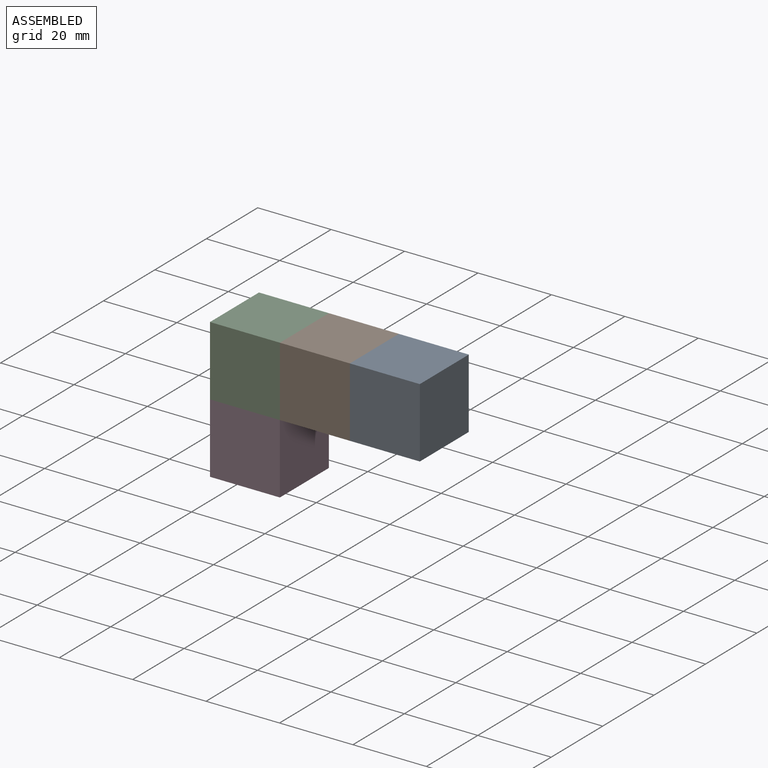
[diagram: assembled view]
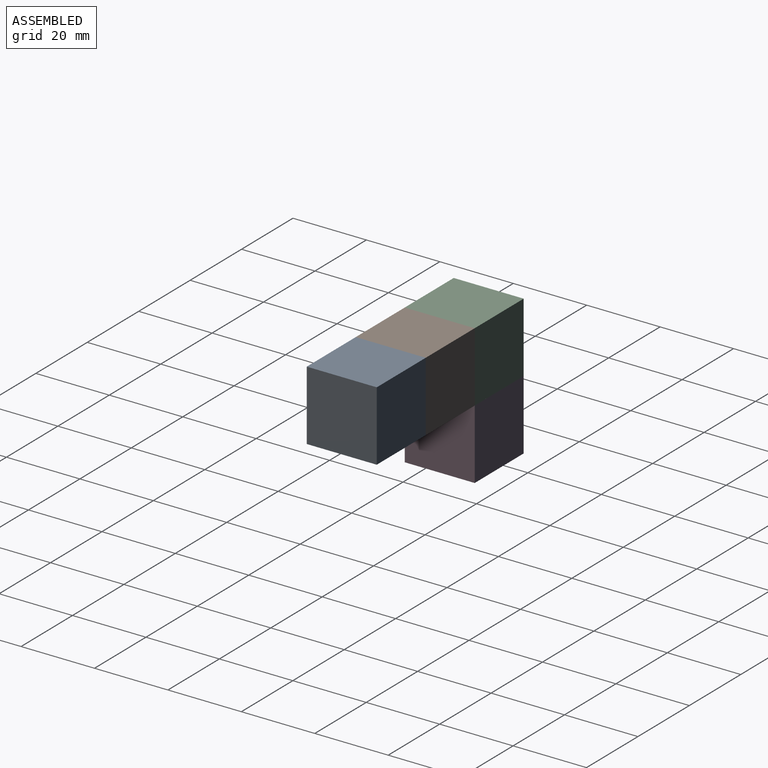
[diagram: assembled view, second angle]
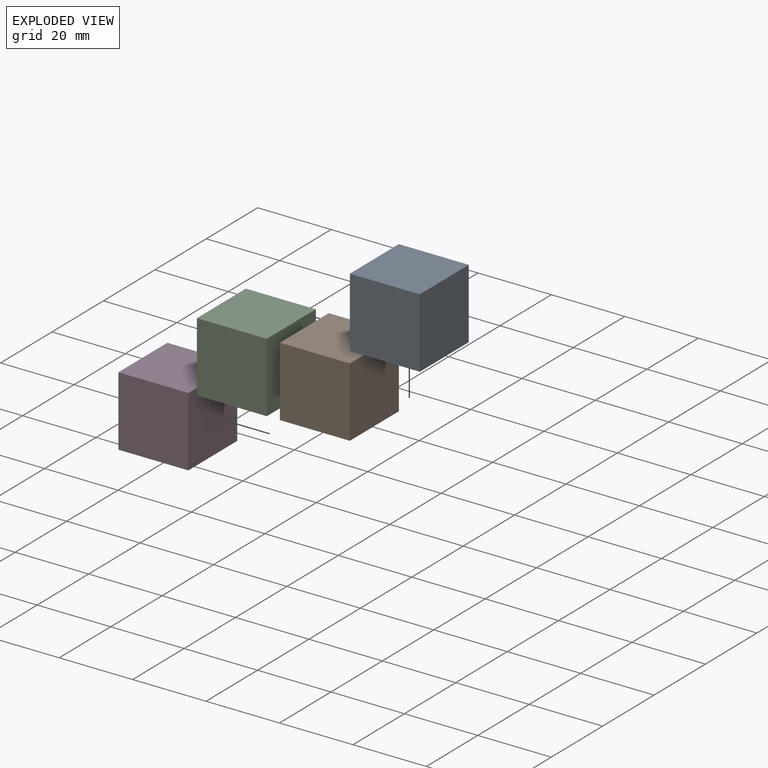
[diagram: exploded view]
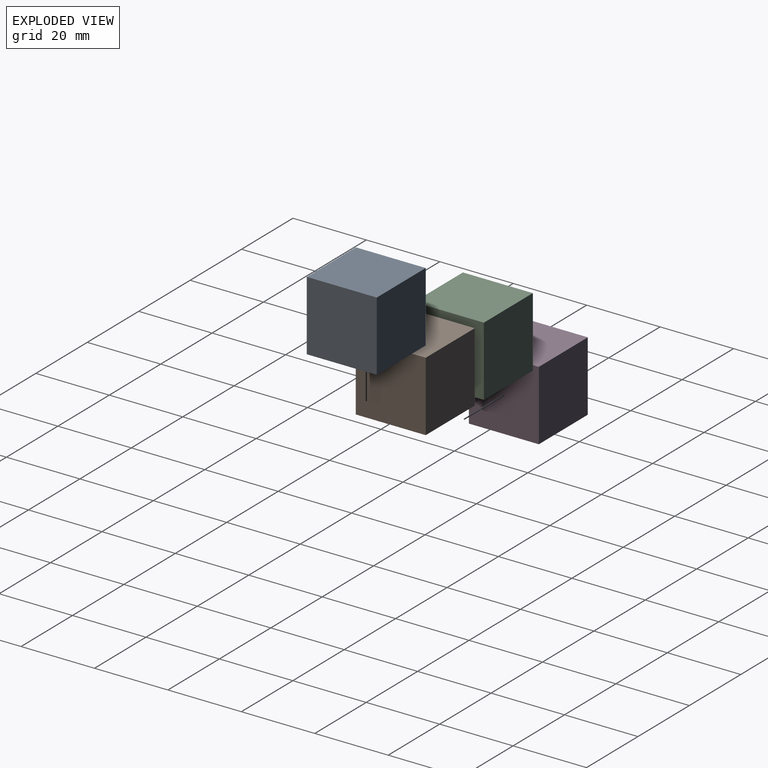
[diagram: exploded view, second angle]
ASSEMBLY  parts=4 mates=9
PART A: 6 faces, bbox 19.1x19.1x19.1 mm
  f0: plane 19.05x19.05mm, normal (0,0,1), area 362.9mm2, adj f1,f3,f4,f5
  f1: plane 19.05x19.05mm, normal (-1,0,0), area 362.9mm2, adj f0,f2,f4,f5
  f2: plane 19.05x19.05mm, normal (0,0,-1), area 362.9mm2, adj f1,f3,f4,f5
  f3: plane 19.05x19.05mm, normal (1,0,0), area 362.9mm2, adj f0,f2,f4,f5
  f4: plane 19.05x19.05mm, normal (0,-1,0), area 362.9mm2, adj f0,f1,f2,f3
  f5: plane 19.05x19.05mm, normal (0,1,0), area 362.9mm2, adj f0,f1,f2,f3
PART B: same geometry as A
PART C: same geometry as A
PART D: same geometry as A
PLACE A t=(-8.77,-5.28,-1.23)mm
PLACE B t=(-27.82,-5.28,-1.23)mm
PLACE C t=(-46.87,-5.28,-1.23)mm
PLACE D t=(-46.87,-5.28,-20.28)mm
MATE planar B.f0 <-> A.f0  axis (0,0,1) through (-37.35,-14.8,17.82)mm
MATE planar B.f5 <-> A.f5  axis (0,1,0) through (-37.35,-5.28,8.3)mm
MATE planar C.f1 <-> D.f1  axis (-1,0,0) through (-65.92,-14.8,8.3)mm
MATE planar C.f3 <-> B.f1  axis (1,0,0) through (-46.87,-14.8,8.3)mm
MATE planar D.f5 <-> C.f5  axis (0,1,0) through (-56.4,-5.28,-10.75)mm
MATE planar C.f5 <-> B.f5  axis (0,1,0) through (-56.4,-5.28,8.3)mm
MATE planar B.f3 <-> A.f1  axis (1,0,0) through (-27.82,-14.8,8.3)mm
MATE planar B.f0 <-> C.f0  axis (0,0,1) through (-37.35,-14.8,17.82)mm
MATE planar D.f0 <-> C.f2  axis (0,0,1) through (-56.4,-14.8,-1.23)mm
